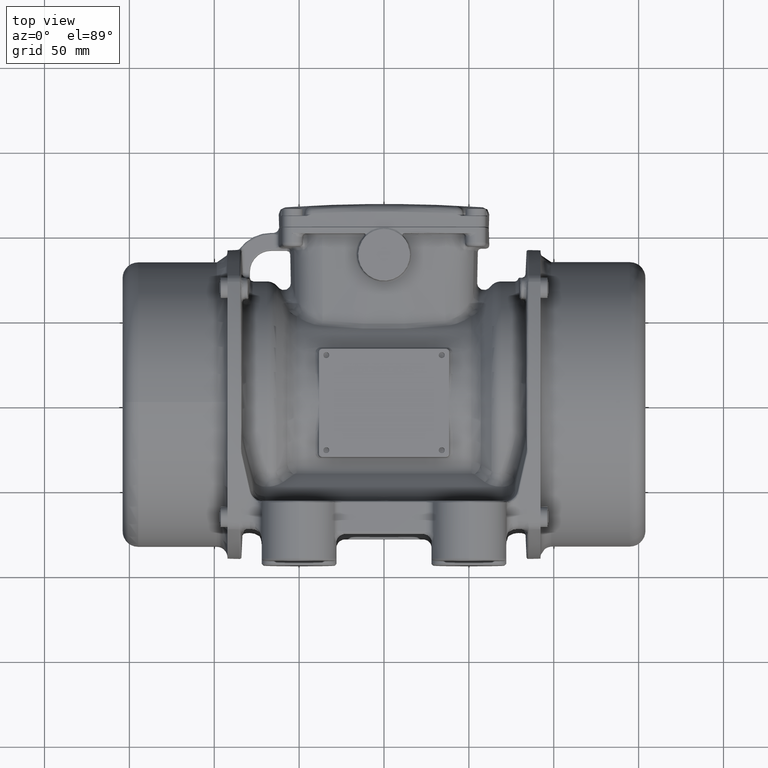
[diagram: clean part render]
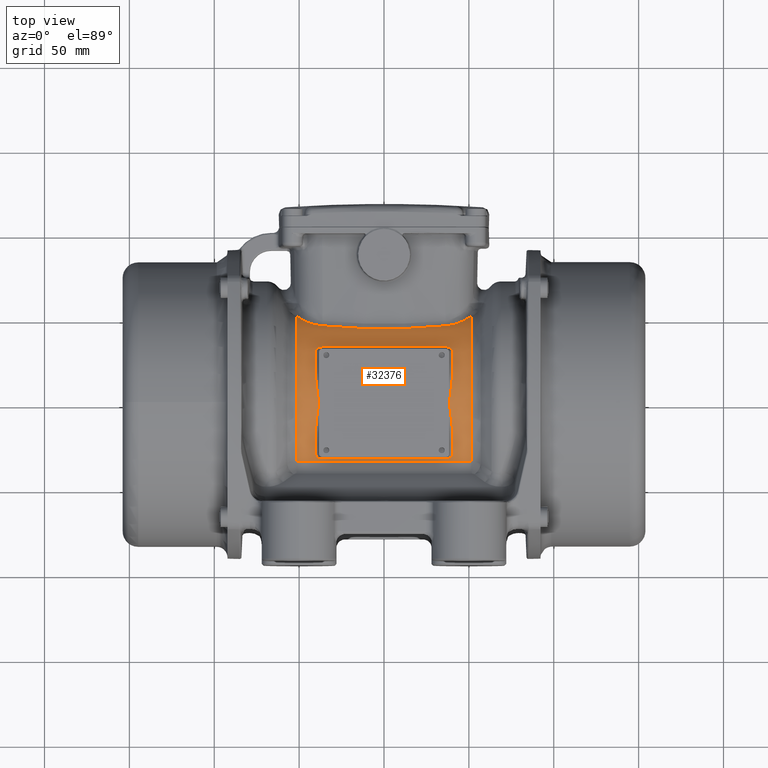
[diagram: same view with one face highlighted and labeled with its STEP entity id]
A machine part, top view. The second image highlights one B-rep face of the part: STEP entity #32376.
In plain terms, the highlighted cylindrical surface (partial cylindrical patch) has radius 61.5 mm, axis along (1, 0, 0).
Its self-contained STEP definition (entity closure, byte-faithful):
#864 = VERTEX_POINT ( 'NONE', #6590 ) ;
#918 = CARTESIAN_POINT ( 'NONE',  ( -40.37237827198737300, 13.82020204862957500, 59.94859250588175600 ) ) ;
#1373 = CARTESIAN_POINT ( 'NONE',  ( -36.63981824325555400, -33.06395834596364800, 51.85580641062659900 ) ) ;
#1546 = DIRECTION ( 'NONE',  ( 1.000000000000000000, 3.061616997868385100E-016, 0.0000000000000000000 ) ) ;
#1651 = ORIENTED_EDGE ( 'NONE', *, *, #17121, .T. ) ;
#1768 = CARTESIAN_POINT ( 'NONE',  ( -39.09687930791829300, -5.024017017944283100, 61.29765052250953500 ) ) ;
#1805 = CARTESIAN_POINT ( 'NONE',  ( -30.53394064317069500, 45.05918840119726100, 41.86555857907365000 ) ) ;
#2086 = CARTESIAN_POINT ( 'NONE',  ( 101.5000000000000000, 3.439524944109925000E-014, 0.0000000000000000000 ) ) ;
#2652 = VERTEX_POINT ( 'NONE', #43786 ) ;
#2737 = CARTESIAN_POINT ( 'NONE',  ( -24.42715251453654400, 44.58539866716068900, 42.36276519705860700 ) ) ;
#3028 = CARTESIAN_POINT ( 'NONE',  ( 40.59781497585029800, -29.15044233080824700, 54.15257807268480400 ) ) ;
#3128 = CARTESIAN_POINT ( 'NONE',  ( -40.59781497585029800, -29.15044233080824700, 54.15257807268480400 ) ) ;
#3312 = CARTESIAN_POINT ( 'NONE',  ( -36.64072877180484500, 45.66040996016249700, 41.19923497190080000 ) ) ;
#3573 = CARTESIAN_POINT ( 'NONE',  ( 38.73217251815604800, 32.49148831228546200, 52.21670608283672300 ) ) ;
#3651 = CARTESIAN_POINT ( 'NONE',  ( 40.56013201105054100, 25.26626566842902800, 56.24343822799227200 ) ) ;
#3765 = CARTESIAN_POINT ( 'NONE',  ( -42.29620551257199400, 46.80827028266508400, 39.89180593488847400 ) ) ;
#3860 = CARTESIAN_POINT ( 'NONE',  ( -37.19643222085099400, 33.03523638545208700, 51.87415115244402800 ) ) ;
#4040 = CARTESIAN_POINT ( 'NONE',  ( 39.16124436592404800, 32.19097649851242700, 52.40250222041846200 ) ) ;
#4128 = CARTESIAN_POINT ( 'NONE',  ( 39.70966625826335400, -31.65255373526390400, 52.72961700262140300 ) ) ;
#4500 = CARTESIAN_POINT ( 'NONE',  ( 36.92156262490245000, 33.06395834596361300, 51.85580641062660600 ) ) ;
#4551 = VECTOR ( 'NONE', #106080, 1000.000000000000000 ) ;
#5315 = CARTESIAN_POINT ( 'NONE',  ( 38.64116132635815900, 1.257702992987932000, 61.49999999999998600 ) ) ;
#6534 = CARTESIAN_POINT ( 'NONE',  ( -40.50023494579733800, -15.38373785286064300, 59.56686004002963800 ) ) ;
#6561 = B_SPLINE_CURVE_WITH_KNOTS ( 'NONE', 3,
 ( #122701, #4500, #113111, #90677, #123630, #79240, #3573, #4040, #90223, #91619, #58263, #79709, #80176, #100659, #91140, #35535, #133560, #111716 ),
 .UNSPECIFIED., .F., .F.,
 ( 4, 2, 2, 2, 2, 2, 2, 2, 4 ),
 ( 0.0000000000000000000, 0.0008442546387968925600, 0.001688509277593785100, 0.002532763916390677700, 0.003377018555187570300, 0.004221273193984463300, 0.005065527832781364100, 0.005909782471578264900, 0.006754037110375164800 ),
 .UNSPECIFIED. ) ;
#6590 = CARTESIAN_POINT ( 'NONE',  ( -39.47566745522460300, 7.513576333540499700, 61.03930021453440000 ) ) ;
#6965 = CARTESIAN_POINT ( 'NONE',  ( 38.50000000000000000, 1.510706235452844800E-014, 61.50000000000000000 ) ) ;
#7132 = CARTESIAN_POINT ( 'NONE',  ( 39.99960953091800100, 10.67093081852184100, 60.58847275017351600 ) ) ;
#8156 = B_SPLINE_CURVE_WITH_KNOTS ( 'NONE', 3,
 ( #3312, #47084, #79439, #90421, #3765, #25211, #79900, #36192, #14722, #135615, #91342, #70379, #102292, #37124 ),
 .UNSPECIFIED., .F., .F.,
 ( 4, 2, 2, 2, 2, 2, 4 ),
 ( 0.0000000000000000000, 0.004436189149666054800, 0.006654283724499084400, 0.008872378299332113100, 0.01330856744899815700, 0.01552666202383117300, 0.01774475659866418800 ),
 .UNSPECIFIED. ) ;
#8359 = CARTESIAN_POINT ( 'NONE',  ( 36.64072877180495200, 45.66040996016249700, 41.19923497190075100 ) ) ;
#9136 = CARTESIAN_POINT ( 'NONE',  ( 40.53016882913184600, -21.18037049350212400, 57.90596195808856100 ) ) ;
#10311 = EDGE_CURVE ( 'NONE', #92187, #89844, #128916, .T. ) ;
#10989 = CARTESIAN_POINT ( 'NONE',  ( -36.63981824325555400, -33.06395834596364800, 51.85580641062659900 ) ) ;
#11373 = CARTESIAN_POINT ( 'NONE',  ( 40.24460987866284300, -30.81210046269293200, 53.22532208104812000 ) ) ;
#11586 = EDGE_CURVE ( 'NONE', #31930, #94484, #56585, .T. ) ;
#11847 = CARTESIAN_POINT ( 'NONE',  ( 40.13282880231631100, -31.03234916996080600, 53.09710478559856700 ) ) ;
#12180 = CARTESIAN_POINT ( 'NONE',  ( 40.59781497585029800, -29.15044233080824700, 54.15257807268480400 ) ) ;
#12345 = CARTESIAN_POINT ( 'NONE',  ( -37.20237050240057600, -33.03435598851425000, 51.87471205681409700 ) ) ;
#12855 = B_SPLINE_CURVE_WITH_KNOTS ( 'NONE', 3,
 ( #18716, #72525, #61600, #63507, #20163, #105396 ),
 .UNSPECIFIED., .F., .F.,
 ( 4, 2, 4 ),
 ( 0.0000000000000000000, 0.004846722154023335200, 0.009693444308046670500 ),
 .UNSPECIFIED. ) ;
#12863 = B_SPLINE_CURVE_WITH_KNOTS ( 'NONE', 3,
 ( #132279, #67056, #99391, #120951, #34245, #45589, #2737, #1805, #98931 ),
 .UNSPECIFIED., .F., .F.,
 ( 4, 2, 1, 2, 4 ),
 ( 0.0000000000000000000, 0.01832036438590244800, 0.03664072877180489500, 0.05496109315770734300, 0.07328145754360979000 ),
 .UNSPECIFIED. ) ;
#13081 = CARTESIAN_POINT ( 'NONE',  ( 40.51511084945365600, -30.12127742201363400, 53.62126843598215900 ) ) ;
#13486 =( BOUNDED_CURVE ( )  B_SPLINE_CURVE ( 3, ( #63436, #9136, #30109, #31543 ),
 .UNSPECIFIED., .F., .T. ) 
 B_SPLINE_CURVE_WITH_KNOTS ( ( 4, 4 ),
 ( 3.420644536320120600, 3.635410353258219400 ),
 .UNSPECIFIED. ) 
 CURVE ( )  GEOMETRIC_REPRESENTATION_ITEM ( )  RATIONAL_B_SPLINE_CURVE ( ( 1.000000000000000000, 0.9961599957372612200, 0.9961599957372612200, 1.000000000000000000 ) ) 
 REPRESENTATION_ITEM ( '' )  );
#13608 = CARTESIAN_POINT ( 'NONE',  ( -38.50000000000000000, -8.467388529058099300E-015, 61.50000000000000000 ) ) ;
#13669 = CARTESIAN_POINT ( 'NONE',  ( 40.53016882913185300, 21.18037049350217400, 57.90596195808855400 ) ) ;
#13882 = CARTESIAN_POINT ( 'NONE',  ( -39.35691352721785600, 32.02220597501478500, 52.50595196452146500 ) ) ;
#14722 = CARTESIAN_POINT ( 'NONE',  ( -47.29376776391198700, 48.84008323980771100, 37.38922700958255500 ) ) ;
#15261 = CARTESIAN_POINT ( 'NONE',  ( -40.13282880231629000, 31.03234916996078500, 53.09710478559858200 ) ) ;
#16059 = CARTESIAN_POINT ( 'NONE',  ( -39.86430554135197500, -31.45419755364294500, 52.84829508349863400 ) ) ;
#16315 = CARTESIAN_POINT ( 'NONE',  ( -38.50000000000000000, -8.467388529058099300E-015, 61.50000000000000000 ) ) ;
#17121 = EDGE_CURVE ( 'NONE', #50363, #45432, #87936, .T. ) ;
#17732 = CARTESIAN_POINT ( 'NONE',  ( -39.01570558827204100, 4.397975386142642100, 61.34576374239078700 ) ) ;
#17925 = VERTEX_POINT ( 'NONE', #89531 ) ;
#18716 = CARTESIAN_POINT ( 'NONE',  ( 39.47566745522464500, -7.513576333540608900, 61.03930021453440000 ) ) ;
#19245 = CARTESIAN_POINT ( 'NONE',  ( 42.35070994937530700, 46.79742897946837100, 39.90680531180351000 ) ) ;
#19321 = CARTESIAN_POINT ( 'NONE',  ( 39.09686427396928100, -5.023905749403342100, 61.29765992817034700 ) ) ;
#19499 = ORIENTED_EDGE ( 'NONE', *, *, #73923, .T. ) ;
#19906 = ORIENTED_EDGE ( 'NONE', *, *, #10311, .T. ) ;
#20163 = CARTESIAN_POINT ( 'NONE',  ( 40.50023490116644400, -15.38372921018642400, 59.56686251639868600 ) ) ;
#20649 = EDGE_CURVE ( 'NONE', #116424, #139814, #12863, .T. ) ;
#20668 = CARTESIAN_POINT ( 'NONE',  ( 49.47431442749100900, 50.06884834030181300, 35.72671591095660700 ) ) ;
#21808 = CARTESIAN_POINT ( 'NONE',  ( 36.63981824325555400, -33.06395834596364800, 51.85580641062659900 ) ) ;
#21913 = EDGE_CURVE ( 'NONE', #139829, #116424, #86973, .T. ) ;
#21971 = CARTESIAN_POINT ( 'NONE',  ( 38.50000000000000000, 1.510706235452844800E-014, 61.50000000000000000 ) ) ;
#22146 = FACE_OUTER_BOUND ( 'NONE', #69164, .T. ) ;
#23059 = CARTESIAN_POINT ( 'NONE',  ( 38.73009096977073500, -32.49286510829819000, 52.21585258265803000 ) ) ;
#23284 = CARTESIAN_POINT ( 'NONE',  ( -38.73217251815604800, -32.49148831228547600, 52.21670608283670800 ) ) ;
#24436 = CARTESIAN_POINT ( 'NONE',  ( 39.47566745522454600, 7.513576333540149800, 61.03930021453440000 ) ) ;
#24898 = AXIS2_PLACEMENT_3D ( 'NONE', #53875, #33018, #107749 ) ;
#25211 = CARTESIAN_POINT ( 'NONE',  ( -43.62282195585361000, 47.25532367438405900, 39.36120846761478000 ) ) ;
#25768 = CARTESIAN_POINT ( 'NONE',  ( -40.51511084945359200, 30.12127742201362300, 53.62126843598213800 ) ) ;
#28109 = CARTESIAN_POINT ( 'NONE',  ( 40.50827060633314900, 16.93982637069414900, 59.12099696834219700 ) ) ;
#28892 = CARTESIAN_POINT ( 'NONE',  ( 39.36704850005553200, -6.894240838620867800, 61.11553674576585100 ) ) ;
#28908 = CARTESIAN_POINT ( 'NONE',  ( 37.19643222085095900, -33.03523638545213000, 51.87415115244398600 ) ) ;
#29360 = CARTESIAN_POINT ( 'NONE',  ( -40.59781497585029800, -29.15044233080824700, 54.15257807268480400 ) ) ;
#29559 = VERTEX_POINT ( 'NONE', #50246 ) ;
#29906 = EDGE_CURVE ( 'NONE', #116681, #120291, #13486, .T. ) ;
#30109 = CARTESIAN_POINT ( 'NONE',  ( 40.56013201105053400, -25.26626566842898600, 56.24343822799227200 ) ) ;
#30358 = CARTESIAN_POINT ( 'NONE',  ( -39.47566745522454600, -7.513576333540199500, 61.03930021453440000 ) ) ;
#31543 = CARTESIAN_POINT ( 'NONE',  ( 40.59781497585029800, -29.15044233080824700, 54.15257807268480400 ) ) ;
#31930 = VERTEX_POINT ( 'NONE', #126046 ) ;
#32149 = CARTESIAN_POINT ( 'NONE',  ( 50.46225581793016300, 50.70643267498957100, 34.82147382504322100 ) ) ;
#32268 = B_SPLINE_CURVE_WITH_KNOTS ( 'NONE', 3,
 ( #16315, #137733, #61549, #17732, #103434, #104387, #93904, #93441 ),
 .UNSPECIFIED., .F., .F.,
 ( 4, 2, 2, 4 ),
 ( -4.981115576185990000E-005, 0.003749451573491743700, 0.005649082938118545200, 0.007548714302745346800 ),
 .UNSPECIFIED. ) ;
#32376 = ADVANCED_FACE ( 'NONE', ( #93715, #22146 ), #105634, .T. ) ;
#33018 = DIRECTION ( 'NONE',  ( -1.000000000000000000, -3.061616997868385100E-016, -0.0000000000000000000 ) ) ;
#33055 = DIRECTION ( 'NONE',  ( -3.384826294588891900E-016, 1.000000000000000000, 0.0000000000000000000 ) ) ;
#34028 = CARTESIAN_POINT ( 'NONE',  ( 40.59781497585029800, 29.15044233080824700, 54.15257807268480400 ) ) ;
#34042 =( BOUNDED_CURVE ( )  B_SPLINE_CURVE ( 3, ( #46492, #3651, #13669, #100273 ),
 .UNSPECIFIED., .F., .F. ) 
 B_SPLINE_CURVE_WITH_KNOTS ( ( 4, 4 ),
 ( 2.647774953921319800, 2.862540770859417700 ),
 .UNSPECIFIED. ) 
 CURVE ( )  GEOMETRIC_REPRESENTATION_ITEM ( )  RATIONAL_B_SPLINE_CURVE ( ( 1.000000000000000000, 0.9961599957372612200, 0.9961599957372612200, 1.000000000000000000 ) ) 
 REPRESENTATION_ITEM ( '' )  );
#34206 = CARTESIAN_POINT ( 'NONE',  ( -38.78265301791531500, -2.516441608369090600, 61.46134661405522300 ) ) ;
#34245 = CARTESIAN_POINT ( 'NONE',  ( 5.724587470723463400E-014, 43.61740027586208900, 43.35515467347053700 ) ) ;
#34707 = EDGE_CURVE ( 'NONE', #139814, #31930, #8156, .T. ) ;
#34966 = EDGE_CURVE ( 'NONE', #43877, #102826, #54088, .T. ) ;
#35271 = B_SPLINE_CURVE_WITH_KNOTS ( 'NONE', 3,
 ( #24436, #59093, #124905, #70061, #136240, #49564, #5315, #38681 ),
 .UNSPECIFIED., .F., .F.,
 ( 4, 2, 2, 4 ),
 ( 0.0000000000000000000, 0.001898399835515815900, 0.003796799671031631700, 0.007593599342063260000 ),
 .UNSPECIFIED. ) ;
#35535 = CARTESIAN_POINT ( 'NONE',  ( 40.57852504874156800, 29.64358102313208200, 53.88490535027602100 ) ) ;
#35974 = EDGE_CURVE ( 'NONE', #2652, #139829, #55752, .T. ) ;
#36192 = CARTESIAN_POINT ( 'NONE',  ( -46.13289338346918100, 48.26855378466547100, 38.11903781614861900 ) ) ;
#36915 = CARTESIAN_POINT ( 'NONE',  ( 38.00138859626879700, -32.83870200115879400, 51.99890067617311500 ) ) ;
#37124 = CARTESIAN_POINT ( 'NONE',  ( -51.36683324359469800, 51.36350239038790000, 33.82366955539580300 ) ) ;
#37604 = B_SPLINE_CURVE_WITH_KNOTS ( 'NONE', 3,
 ( #91902, #135244, #25768, #133382, #15261, #47633, #90034, #13882, #123901, #58542, #134311, #79064, #134774, #3860, #111990, #37693 ),
 .UNSPECIFIED., .F., .F.,
 ( 4, 2, 2, 2, 2, 2, 2, 4 ),
 ( 0.0000000000000000000, 0.001658463665774781700, 0.002487695498662165200, 0.003316927331549540800, 0.004146159164436915400, 0.004975390997324291400, 0.005804622830211666500, 0.006633854663099041600 ),
 .UNSPECIFIED. ) ;
#37693 = CARTESIAN_POINT ( 'NONE',  ( -36.63981824325555400, 33.06395834596360600, 51.85580641062659900 ) ) ;
#38459 = CARTESIAN_POINT ( 'NONE',  ( 36.92106458352602500, -33.06395834596361300, 51.85580641062659200 ) ) ;
#38511 = ORIENTED_EDGE ( 'NONE', *, *, #74537, .T. ) ;
#38681 = CARTESIAN_POINT ( 'NONE',  ( 38.50000000000000000, 1.510706235452844800E-014, 61.50000000000000000 ) ) ;
#38787 = ORIENTED_EDGE ( 'NONE', *, *, #35974, .T. ) ;
#40319 = CARTESIAN_POINT ( 'NONE',  ( -40.56013201105054100, -25.26626566842901800, 56.24343822799227900 ) ) ;
#40342 = ORIENTED_EDGE ( 'NONE', *, *, #29906, .T. ) ;
#41265 = CARTESIAN_POINT ( 'NONE',  ( 39.27274268073112000, -6.271991136875468200, 61.18255363114116800 ) ) ;
#41534 = EDGE_CURVE ( 'NONE', #89844, #71389, #35271, .T. ) ;
#42041 = LINE ( 'NONE', #127098, #4551 ) ;
#42123 = CARTESIAN_POINT ( 'NONE',  ( 38.11729689752115700, 45.83667163015868300, 41.00351525518133400 ) ) ;
#43080 = AXIS2_PLACEMENT_3D ( 'NONE', #2086, #78246, #120759 ) ;
#43786 = CARTESIAN_POINT ( 'NONE',  ( 51.36683324359469800, -34.61027141481080300, 50.83678896815889900 ) ) ;
#43877 = VERTEX_POINT ( 'NONE', #21808 ) ;
#44003 = CARTESIAN_POINT ( 'NONE',  ( -40.53016882913185300, 21.18037049350216700, 57.90596195808854700 ) ) ;
#44269 = CARTESIAN_POINT ( 'NONE',  ( 38.49575868235481100, -32.62438758180001500, 52.13362979463369800 ) ) ;
#44732 = CARTESIAN_POINT ( 'NONE',  ( -39.47566745522460300, 7.513576333540499700, 61.03930021453440000 ) ) ;
#45326 = CARTESIAN_POINT ( 'NONE',  ( -36.64072877180484500, 45.66040996016249700, 41.19923497190080000 ) ) ;
#45365 = VERTEX_POINT ( 'NONE', #3128 ) ;
#45432 = VERTEX_POINT ( 'NONE', #13608 ) ;
#45483 = ORIENTED_EDGE ( 'NONE', *, *, #34707, .T. ) ;
#45589 = CARTESIAN_POINT ( 'NONE',  ( -12.21357625726824200, 43.94665107686246600, 43.02503351049568900 ) ) ;
#46020 = CARTESIAN_POINT ( 'NONE',  ( -39.27275113117633500, -6.272046519955015500, 61.18254766702533900 ) ) ;
#46077 =( BOUNDED_CURVE ( )  B_SPLINE_CURVE ( 3, ( #66820, #44003, #88668, #67285 ),
 .UNSPECIFIED., .F., .F. ) 
 B_SPLINE_CURVE_WITH_KNOTS ( ( 4, 4 ),
 ( 0.2790518827303405400, 0.4938176996684389700 ),
 .UNSPECIFIED. ) 
 CURVE ( )  GEOMETRIC_REPRESENTATION_ITEM ( )  RATIONAL_B_SPLINE_CURVE ( ( 1.000000000000000000, 0.9961599957372612200, 0.9961599957372612200, 1.000000000000000000 ) ) 
 REPRESENTATION_ITEM ( '' )  );
#46492 = CARTESIAN_POINT ( 'NONE',  ( 40.59781497585029800, 29.15044233080824700, 54.15257807268480400 ) ) ;
#46572 = CARTESIAN_POINT ( 'NONE',  ( -39.16124436592407000, -32.19097649851243400, 52.40250222041844800 ) ) ;
#47084 = CARTESIAN_POINT ( 'NONE',  ( -38.12758436090937400, 45.80679290589563400, 41.03700124795156500 ) ) ;
#47633 = CARTESIAN_POINT ( 'NONE',  ( -39.86624663525889600, 31.45161561437881300, 52.84983544784754600 ) ) ;
#48434 = CARTESIAN_POINT ( 'NONE',  ( -40.60021224044035600, -29.39754070068807200, 54.01956452028200300 ) ) ;
#49266 = EDGE_CURVE ( 'NONE', #128281, #50307, #6561, .T. ) ;
#49564 = CARTESIAN_POINT ( 'NONE',  ( 38.78265301791672900, 2.516441608381366100, 61.46134661405464800 ) ) ;
#49600 = CARTESIAN_POINT ( 'NONE',  ( -51.36683324359460600, -34.61027141481080300, 50.83678896815899900 ) ) ;
#50246 = CARTESIAN_POINT ( 'NONE',  ( -40.50827060633314900, 16.93982637069410300, 59.12099696834219700 ) ) ;
#50307 = VERTEX_POINT ( 'NONE', #34028 ) ;
#50363 = VERTEX_POINT ( 'NONE', #68653 ) ;
#50696 = EDGE_CURVE ( 'NONE', #94484, #2652, #42041, .T. ) ;
#52048 = CARTESIAN_POINT ( 'NONE',  ( 47.30611466767798100, 48.86623307356579500, 37.34375540534782100 ) ) ;
#52572 = ORIENTED_EDGE ( 'NONE', *, *, #96550, .T. ) ;
#53076 = ORIENTED_EDGE ( 'NONE', *, *, #34966, .T. ) ;
#53746 = CARTESIAN_POINT ( 'NONE',  ( -40.50023490116644400, 15.38372921018640600, 59.56686251639870000 ) ) ;
#53875 = CARTESIAN_POINT ( 'NONE',  ( 51.36683324359469800, 1.904639389126120200E-014, 0.0000000000000000000 ) ) ;
#54088 = LINE ( 'NONE', #108087, #64562 ) ;
#55123 = EDGE_CURVE ( 'NONE', #45365, #90308, #102461, .T. ) ;
#55752 = CIRCLE ( 'NONE', #24898, 61.50000000000000000 ) ;
#56512 = B_SPLINE_CURVE_WITH_KNOTS ( 'NONE', 3,
 ( #117065, #6534, #137451, #105561, #138892, #30358 ),
 .UNSPECIFIED., .F., .F.,
 ( 4, 2, 4 ),
 ( 0.0000000000000000000, 0.004843233503173409800, 0.009686467006346819600 ),
 .UNSPECIFIED. ) ;
#56585 = CIRCLE ( 'NONE', #124396, 61.50000000000000000 ) ;
#56832 = CARTESIAN_POINT ( 'NONE',  ( 40.60260638783499600, -29.64431776523035100, 53.88672392719242100 ) ) ;
#57006 = CARTESIAN_POINT ( 'NONE',  ( -38.50083908597583400, -32.62202177129625400, 52.13511452158464700 ) ) ;
#57978 = DIRECTION ( 'NONE',  ( 1.000000000000000000, 3.061616997868385100E-016, 0.0000000000000000000 ) ) ;
#58263 = CARTESIAN_POINT ( 'NONE',  ( 39.86430554135197500, 31.45419755364295300, 52.84829508349866200 ) ) ;
#58542 = CARTESIAN_POINT ( 'NONE',  ( -38.73009096977070000, 32.49286510829816200, 52.21585258265806600 ) ) ;
#59093 = CARTESIAN_POINT ( 'NONE',  ( 39.36705333453466700, 6.894268404384988000, 61.11553335258347600 ) ) ;
#60459 = ORIENTED_EDGE ( 'NONE', *, *, #49266, .T. ) ;
#61549 = CARTESIAN_POINT ( 'NONE',  ( -38.78263069786101600, 2.516250542652656500, 61.46135492928849000 ) ) ;
#61600 = CARTESIAN_POINT ( 'NONE',  ( 39.99961880233117700, -10.67099870760311700, 60.58846024354424700 ) ) ;
#62863 = CARTESIAN_POINT ( 'NONE',  ( 40.37237634145730400, 13.82017530006124600, 59.94859922807018600 ) ) ;
#63436 = CARTESIAN_POINT ( 'NONE',  ( 40.50827060633314900, -16.93982637069410300, 59.12099696834219700 ) ) ;
#63507 = CARTESIAN_POINT ( 'NONE',  ( 40.37237827198737300, -13.82020204862961800, 59.94859250588174900 ) ) ;
#64506 = B_SPLINE_CURVE_WITH_KNOTS ( 'NONE', 3,
 ( #44732, #109048, #121005, #918, #53746, #140918 ),
 .UNSPECIFIED., .F., .F.,
 ( 4, 2, 4 ),
 ( 0.0000000000000000000, 0.004846722154023389000, 0.009693444308046778000 ),
 .UNSPECIFIED. ) ;
#64562 = VECTOR ( 'NONE', #76612, 1000.000000000000000 ) ;
#66082 = CARTESIAN_POINT ( 'NONE',  ( -38.64116133069665400, -1.257702992484222700, 61.50000000000002100 ) ) ;
#66820 = CARTESIAN_POINT ( 'NONE',  ( -40.50827060633314900, 16.93982637069410300, 59.12099696834219700 ) ) ;
#67056 = CARTESIAN_POINT ( 'NONE',  ( 30.53394064317080100, 45.05918840119725400, 41.86555857907365700 ) ) ;
#67285 = CARTESIAN_POINT ( 'NONE',  ( -40.59781497585029800, 29.15044233080824700, 54.15257807268480400 ) ) ;
#68110 = VECTOR ( 'NONE', #57978, 1000.000000000000000 ) ;
#68653 = CARTESIAN_POINT ( 'NONE',  ( -39.47566745522454600, -7.513576333540199500, 61.03930021453440000 ) ) ;
#69164 = EDGE_LOOP ( 'NONE', ( #120555, #89355, #38787, #133497, #97174, #45483 ) ) ;
#70061 = CARTESIAN_POINT ( 'NONE',  ( 39.09687930791908200, 5.024017017950384900, 61.29765052250902400 ) ) ;
#70379 = CARTESIAN_POINT ( 'NONE',  ( -50.43987118715526200, 50.71039359694688600, 34.79965701320773500 ) ) ;
#71389 = VERTEX_POINT ( 'NONE', #21971 ) ;
#71482 = LINE ( 'NONE', #89933, #68110 ) ;
#71648 = ORIENTED_EDGE ( 'NONE', *, *, #119227, .T. ) ;
#71865 = CARTESIAN_POINT ( 'NONE',  ( 39.47566745522454600, 7.513576333540149800, 61.03930021453440000 ) ) ;
#72525 = CARTESIAN_POINT ( 'NONE',  ( 39.75301038098924500, -9.094960705389606700, 60.84464116456503300 ) ) ;
#73923 = EDGE_CURVE ( 'NONE', #102826, #45365, #132868, .T. ) ;
#74002 = CARTESIAN_POINT ( 'NONE',  ( 43.66237573442159500, 47.24715720380724100, 39.37803988183439700 ) ) ;
#74537 = EDGE_CURVE ( 'NONE', #126241, #128281, #71482, .T. ) ;
#74947 = CARTESIAN_POINT ( 'NONE',  ( 46.13795008093536900, 48.30046611931852100, 38.07050294723457300 ) ) ;
#75971 = CARTESIAN_POINT ( 'NONE',  ( 39.35691352721789100, -32.02220597501481300, 52.50595196452146500 ) ) ;
#76612 = DIRECTION ( 'NONE',  ( -1.000000000000000000, -3.061616997868385100E-016, -0.0000000000000000000 ) ) ;
#77305 = CARTESIAN_POINT ( 'NONE',  ( 39.16170146141672600, -32.19073712645256100, 52.40265248186937400 ) ) ;
#78246 = DIRECTION ( 'NONE',  ( 1.000000000000000000, 3.061616997868385100E-016, 0.0000000000000000000 ) ) ;
#79064 = CARTESIAN_POINT ( 'NONE',  ( -38.00138859626878900, 32.83870200115875800, 51.99890067617315000 ) ) ;
#79240 = CARTESIAN_POINT ( 'NONE',  ( 38.50083908597583400, 32.62202177129625400, 52.13511452158464700 ) ) ;
#79336 = CARTESIAN_POINT ( 'NONE',  ( 39.86624663525893200, -31.45161561437882700, 52.84983544784753200 ) ) ;
#79439 = CARTESIAN_POINT ( 'NONE',  ( -39.55527558466045000, 46.07026641682247700, 40.74404544284224300 ) ) ;
#79709 = CARTESIAN_POINT ( 'NONE',  ( 40.13058257813937500, 31.03634547150979400, 53.09476524808484800 ) ) ;
#79900 = CARTESIAN_POINT ( 'NONE',  ( -44.26749771561838300, 47.49818087115566800, 39.06838742582052500 ) ) ;
#80130 = EDGE_CURVE ( 'NONE', #17925, #126241, #37604, .T. ) ;
#80176 = CARTESIAN_POINT ( 'NONE',  ( 40.24414321624779200, 30.81281215600983400, 53.22489970943635000 ) ) ;
#80323 = CARTESIAN_POINT ( 'NONE',  ( -40.24414321624779200, -30.81281215600984100, 53.22489970943635000 ) ) ;
#80768 = CARTESIAN_POINT ( 'NONE',  ( -39.36039713988715500, -32.01887539766327300, 52.50797888656252600 ) ) ;
#81683 = CARTESIAN_POINT ( 'NONE',  ( 36.63981824325555400, -33.06395834596364800, 51.85580641062659900 ) ) ;
#81705 = CARTESIAN_POINT ( 'NONE',  ( -40.59781497585029800, -29.15044233080824700, 54.15257807268480400 ) ) ;
#84448 = CARTESIAN_POINT ( 'NONE',  ( 37.38408965269469100, 45.73359484528839400, 41.11812541100689300 ) ) ;
#85386 = CARTESIAN_POINT ( 'NONE',  ( 45.53314004632930800, 48.02736497072883300, 38.41445608058559500 ) ) ;
#86973 = B_SPLINE_CURVE_WITH_KNOTS ( 'NONE', 3,
 ( #96828, #32149, #20668, #129721, #52048, #97289, #74947, #85386, #128799, #74002, #19245, #118825, #106874, #42123, #84448, #139720 ),
 .UNSPECIFIED., .F., .F.,
 ( 4, 2, 2, 2, 2, 2, 2, 4 ),
 ( 0.0000000000000000000, 0.004439218146582280200, 0.006658827219873431900, 0.007768631756519008700, 0.008878436293164584600, 0.01331765443974693800, 0.01553726351303811600, 0.01775687258632929100 ),
 .UNSPECIFIED. ) ;
#87936 = B_SPLINE_CURVE_WITH_KNOTS ( 'NONE', 3,
 ( #132235, #110369, #46020, #1768, #99346, #34206, #66082, #132708 ),
 .UNSPECIFIED., .F., .F.,
 ( 4, 2, 2, 4 ),
 ( 0.0000000000000000000, 0.001898399835520480100, 0.003796799671040960200, 0.007593599342081918700 ),
 .UNSPECIFIED. ) ;
#88057 = EDGE_CURVE ( 'NONE', #120291, #43877, #124040, .T. ) ;
#88487 = CARTESIAN_POINT ( 'NONE',  ( -38.00031994756061200, -32.83932737111247500, 51.99851005979476100 ) ) ;
#88668 = CARTESIAN_POINT ( 'NONE',  ( -40.56013201105054100, 25.26626566842902500, 56.24343822799225700 ) ) ;
#89355 = ORIENTED_EDGE ( 'NONE', *, *, #50696, .T. ) ;
#89531 = CARTESIAN_POINT ( 'NONE',  ( -40.59781497585029800, 29.15044233080824700, 54.15257807268480400 ) ) ;
#89844 = VERTEX_POINT ( 'NONE', #129921 ) ;
#89933 = CARTESIAN_POINT ( 'NONE',  ( 101.5000000000000000, 33.06395834596360600, 51.85580641062659900 ) ) ;
#90034 = CARTESIAN_POINT ( 'NONE',  ( -39.70966625826331200, 31.65255373526387900, 52.72961700262140300 ) ) ;
#90223 = CARTESIAN_POINT ( 'NONE',  ( 39.36039713988715500, 32.01887539766326500, 52.50797888656254000 ) ) ;
#90308 = VERTEX_POINT ( 'NONE', #128848 ) ;
#90421 = CARTESIAN_POINT ( 'NONE',  ( -41.62057896121351800, 46.60609284836722600, 40.12725110321814300 ) ) ;
#90677 = CARTESIAN_POINT ( 'NONE',  ( 37.74013442353939500, 32.92203989022345900, 51.94606545273468600 ) ) ;
#91140 = CARTESIAN_POINT ( 'NONE',  ( 40.49007214652933600, 30.12204477388522900, 53.61890841040366200 ) ) ;
#91286 = CARTESIAN_POINT ( 'NONE',  ( -39.71088304999059900, -31.65095440599704400, 52.73057285552926000 ) ) ;
#91342 = CARTESIAN_POINT ( 'NONE',  ( -49.44460976294208600, 50.07187825612172800, 35.71228296956519400 ) ) ;
#91619 = CARTESIAN_POINT ( 'NONE',  ( 39.71088304999060600, 31.65095440599703000, 52.73057285552927500 ) ) ;
#91762 = CARTESIAN_POINT ( 'NONE',  ( -40.13058257813939600, -31.03634547150980100, 53.09476524808484000 ) ) ;
#91902 = CARTESIAN_POINT ( 'NONE',  ( -40.59781497585029800, 29.15044233080824700, 54.15257807268480400 ) ) ;
#92187 = VERTEX_POINT ( 'NONE', #134343 ) ;
#93441 = CARTESIAN_POINT ( 'NONE',  ( -39.47566745522460300, 7.513576333540499700, 61.03930021453440000 ) ) ;
#93715 = FACE_BOUND ( 'NONE', #112968, .T. ) ;
#93904 = CARTESIAN_POINT ( 'NONE',  ( -39.36704850005833800, 6.894240838636689800, 61.11553674576387600 ) ) ;
#94093 = CARTESIAN_POINT ( 'NONE',  ( 37.73603868239830900, -32.92324854459146600, 51.94529917230590100 ) ) ;
#94484 = VERTEX_POINT ( 'NONE', #49600 ) ;
#95476 = CARTESIAN_POINT ( 'NONE',  ( 39.47566745522464500, -7.513576333540608900, 61.03930021453440000 ) ) ;
#95753 = EDGE_CURVE ( 'NONE', #864, #29559, #64506, .T. ) ;
#95981 = EDGE_CURVE ( 'NONE', #90308, #50363, #56512, .T. ) ;
#96550 = EDGE_CURVE ( 'NONE', #29559, #17925, #46077, .T. ) ;
#96828 = CARTESIAN_POINT ( 'NONE',  ( 51.36683324359469800, 51.36350239038800700, 33.82366955539575300 ) ) ;
#97174 = ORIENTED_EDGE ( 'NONE', *, *, #20649, .T. ) ;
#97289 = CARTESIAN_POINT ( 'NONE',  ( 46.43431431550414600, 48.43995700399119600, 37.89293161125318200 ) ) ;
#98205 = CARTESIAN_POINT ( 'NONE',  ( -51.36683324359460600, -1.240672006579084000E-014, 0.0000000000000000000 ) ) ;
#98931 = CARTESIAN_POINT ( 'NONE',  ( -36.64072877180484500, 45.66040996016249700, 41.19923497190080000 ) ) ;
#99189 = CARTESIAN_POINT ( 'NONE',  ( 40.50827060633314900, -16.93982637069410300, 59.12099696834219700 ) ) ;
#99346 = CARTESIAN_POINT ( 'NONE',  ( -39.01572542078079700, -4.398130069737165500, 61.34575252929102600 ) ) ;
#99391 = CARTESIAN_POINT ( 'NONE',  ( 24.42715251453665500, 44.58539866716069600, 42.36276519705861400 ) ) ;
#100273 = CARTESIAN_POINT ( 'NONE',  ( 40.50827060633314900, 16.93982637069414900, 59.12099696834219700 ) ) ;
#100613 = CARTESIAN_POINT ( 'NONE',  ( -36.63981824325555400, 33.06395834596360600, 51.85580641062659900 ) ) ;
#100659 = CARTESIAN_POINT ( 'NONE',  ( 40.42342822650461200, 30.35589730636236200, 53.48680996999809200 ) ) ;
#102292 = CARTESIAN_POINT ( 'NONE',  ( -50.91463372248148300, 51.03503232004221200, 34.32247330629406400 ) ) ;
#102461 =( BOUNDED_CURVE ( )  B_SPLINE_CURVE ( 3, ( #29360, #40319, #117037, #138855 ),
 .UNSPECIFIED., .F., .T. ) 
 B_SPLINE_CURVE_WITH_KNOTS ( ( 4, 4 ),
 ( 5.789367607511125300, 6.004133424449223700 ),
 .UNSPECIFIED. ) 
 CURVE ( )  GEOMETRIC_REPRESENTATION_ITEM ( )  RATIONAL_B_SPLINE_CURVE ( ( 1.000000000000000000, 0.9961599957372612200, 0.9961599957372612200, 1.000000000000000000 ) ) 
 REPRESENTATION_ITEM ( '' )  );
#102826 = VERTEX_POINT ( 'NONE', #10989 ) ;
#103434 = CARTESIAN_POINT ( 'NONE',  ( -39.09686427397801400, 5.023905749467545900, 61.29765992816493300 ) ) ;
#104387 = CARTESIAN_POINT ( 'NONE',  ( -39.27274268073600900, 6.271991136907368900, 61.18255363113772900 ) ) ;
#104595 = ORIENTED_EDGE ( 'NONE', *, *, #129432, .T. ) ;
#105396 = CARTESIAN_POINT ( 'NONE',  ( 40.50827060633314900, -16.93982637069410300, 59.12099696834219700 ) ) ;
#105561 = CARTESIAN_POINT ( 'NONE',  ( -39.99960953091801500, -10.67093081852185100, 60.58847275017351600 ) ) ;
#105634 = CYLINDRICAL_SURFACE ( 'NONE', #43080, 61.50000000000000000 ) ;
#106080 = DIRECTION ( 'NONE',  ( 1.000000000000000000, 3.061616997868385100E-016, 0.0000000000000000000 ) ) ;
#106160 = CARTESIAN_POINT ( 'NONE',  ( 40.50023494579733800, 15.38373785286068300, 59.56686004002966000 ) ) ;
#106874 = CARTESIAN_POINT ( 'NONE',  ( 39.56441876813902800, 46.09814993318062900, 40.70932696754987000 ) ) ;
#107749 = DIRECTION ( 'NONE',  ( -3.384826294588891900E-016, 1.000000000000000000, 1.776356839400250500E-015 ) ) ;
#108087 = CARTESIAN_POINT ( 'NONE',  ( 101.5000000000000000, -33.06395834596360600, 51.85580641062659900 ) ) ;
#108852 = CARTESIAN_POINT ( 'NONE',  ( 39.47566745522464500, -7.513576333540608900, 61.03930021453440000 ) ) ;
#109048 = CARTESIAN_POINT ( 'NONE',  ( -39.75301038098920300, 9.094960705389516100, 60.84464116456503300 ) ) ;
#110369 = CARTESIAN_POINT ( 'NONE',  ( -39.36705333453438300, -6.894268404383519000, 61.11553335258367500 ) ) ;
#111378 = VERTEX_POINT ( 'NONE', #108852 ) ;
#111716 = CARTESIAN_POINT ( 'NONE',  ( 40.59781497585029800, 29.15044233080824700, 54.15257807268480400 ) ) ;
#111990 = CARTESIAN_POINT ( 'NONE',  ( -36.92106458352603200, 33.06395834596360600, 51.85580641062662000 ) ) ;
#112393 = ORIENTED_EDGE ( 'NONE', *, *, #80130, .T. ) ;
#112968 = EDGE_LOOP ( 'NONE', ( #19906, #114039, #71648, #104595, #40342, #138617, #53076, #19499, #125529, #122470, #1651, #140816, #116182, #52572, #112393, #38511, #60459, #136002 ) ) ;
#113111 = CARTESIAN_POINT ( 'NONE',  ( 37.20237050240057600, 33.03435598851423500, 51.87471205681411800 ) ) ;
#113726 = CARTESIAN_POINT ( 'NONE',  ( -40.42342822650462600, -30.35589730636237200, 53.48680996999807700 ) ) ;
#114039 = ORIENTED_EDGE ( 'NONE', *, *, #41534, .T. ) ;
#115360 = EDGE_CURVE ( 'NONE', #45432, #864, #32268, .T. ) ;
#115594 = CARTESIAN_POINT ( 'NONE',  ( 38.78263069784581100, -2.516250542523506400, 61.46135492929446500 ) ) ;
#116100 = EDGE_CURVE ( 'NONE', #50307, #92187, #34042, .T. ) ;
#116182 = ORIENTED_EDGE ( 'NONE', *, *, #95753, .T. ) ;
#116424 = VERTEX_POINT ( 'NONE', #8359 ) ;
#116553 = CARTESIAN_POINT ( 'NONE',  ( 38.64125290512173900, -1.258518888751507700, 61.50000000000576300 ) ) ;
#116681 = VERTEX_POINT ( 'NONE', #99189 ) ;
#117037 = CARTESIAN_POINT ( 'NONE',  ( -40.53016882913184600, -21.18037049350216000, 57.90596195808856800 ) ) ;
#117065 = CARTESIAN_POINT ( 'NONE',  ( -40.50827060633314900, -16.93982637069410300, 59.12099696834219700 ) ) ;
#118825 = CARTESIAN_POINT ( 'NONE',  ( 40.27683233564980700, 46.25655058512236900, 40.52970694794944300 ) ) ;
#119227 = EDGE_CURVE ( 'NONE', #71389, #111378, #140402, .T. ) ;
#120291 = VERTEX_POINT ( 'NONE', #3028 ) ;
#120555 = ORIENTED_EDGE ( 'NONE', *, *, #11586, .T. ) ;
#120759 = DIRECTION ( 'NONE',  ( -2.256550863059261500E-016, 1.000000000000000000, 0.0000000000000000000 ) ) ;
#120951 = CARTESIAN_POINT ( 'NONE',  ( 12.21357625726835400, 43.94665107686243700, 43.02503351049571000 ) ) ;
#121005 = CARTESIAN_POINT ( 'NONE',  ( -39.99961880233117000, 10.67099870760304200, 60.58846024354425500 ) ) ;
#121904 = CARTESIAN_POINT ( 'NONE',  ( -36.92156262490243500, -33.06395834596360600, 51.85580641062659900 ) ) ;
#122470 = ORIENTED_EDGE ( 'NONE', *, *, #95981, .T. ) ;
#122701 = CARTESIAN_POINT ( 'NONE',  ( 36.63981824325555400, 33.06395834596360600, 51.85580641062659900 ) ) ;
#123303 = CARTESIAN_POINT ( 'NONE',  ( -40.57852504874158200, -29.64358102313208200, 53.88490535027603600 ) ) ;
#123630 = CARTESIAN_POINT ( 'NONE',  ( 38.00031994756061200, 32.83932737111247500, 51.99851005979476800 ) ) ;
#123901 = CARTESIAN_POINT ( 'NONE',  ( -39.16170146141669100, 32.19073712645252500, 52.40265248186940300 ) ) ;
#124040 = B_SPLINE_CURVE_WITH_KNOTS ( 'NONE', 3,
 ( #12180, #56832, #13081, #11373, #11847, #79336, #4128, #75971, #77305, #23059, #44269, #36915, #94093, #28908, #38459, #81683 ),
 .UNSPECIFIED., .F., .F.,
 ( 4, 2, 2, 2, 2, 2, 2, 4 ),
 ( 0.0000000000000000000, 0.001658463665774774500, 0.002487695498662161700, 0.003316927331549540800, 0.004146159164436920600, 0.004975390997324300100, 0.005804622830211679500, 0.006633854663099059800 ),
 .UNSPECIFIED. ) ;
#124396 = AXIS2_PLACEMENT_3D ( 'NONE', #98205, #1546, #33055 ) ;
#124841 = CARTESIAN_POINT ( 'NONE',  ( 51.36683324359469800, 51.36350239038800700, 33.82366955539575300 ) ) ;
#124905 = CARTESIAN_POINT ( 'NONE',  ( 39.27275113117679000, 6.272046519958028200, 61.18254766702500500 ) ) ;
#125529 = ORIENTED_EDGE ( 'NONE', *, *, #55123, .T. ) ;
#126046 = CARTESIAN_POINT ( 'NONE',  ( -51.36683324359469800, 51.36350239038790000, 33.82366955539580300 ) ) ;
#126241 = VERTEX_POINT ( 'NONE', #100613 ) ;
#127098 = CARTESIAN_POINT ( 'NONE',  ( 101.5000000000000000, -34.61027141481075400, 50.83678896815899900 ) ) ;
#127183 = CARTESIAN_POINT ( 'NONE',  ( 39.75300975952833200, 9.094957161875587600, 60.84464160075059200 ) ) ;
#128281 = VERTEX_POINT ( 'NONE', #134826 ) ;
#128799 = CARTESIAN_POINT ( 'NONE',  ( 45.22413432978137800, 47.89354624890927400, 38.58108792857115100 ) ) ;
#128848 = CARTESIAN_POINT ( 'NONE',  ( -40.50827060633314900, -16.93982637069410300, 59.12099696834219700 ) ) ;
#128916 = B_SPLINE_CURVE_WITH_KNOTS ( 'NONE', 3,
 ( #28109, #106160, #62863, #7132, #127183, #71865 ),
 .UNSPECIFIED., .F., .F.,
 ( 4, 2, 4 ),
 ( 0.0000000000000000000, 0.004843233503173456600, 0.009686467006346913300 ),
 .UNSPECIFIED. ) ;
#129432 = EDGE_CURVE ( 'NONE', #111378, #116681, #12855, .T. ) ;
#129721 = CARTESIAN_POINT ( 'NONE',  ( 47.86431316204082300, 49.16078869574668900, 36.95573441008486500 ) ) ;
#129921 = CARTESIAN_POINT ( 'NONE',  ( 39.47566745522454600, 7.513576333540149800, 61.03930021453440000 ) ) ;
#132235 = CARTESIAN_POINT ( 'NONE',  ( -39.47566745522454600, -7.513576333540199500, 61.03930021453440000 ) ) ;
#132279 = CARTESIAN_POINT ( 'NONE',  ( 36.64072877180495200, 45.66040996016249700, 41.19923497190075100 ) ) ;
#132708 = CARTESIAN_POINT ( 'NONE',  ( -38.50000000000000000, -8.467388529058099300E-015, 61.50000000000000000 ) ) ;
#132868 = B_SPLINE_CURVE_WITH_KNOTS ( 'NONE', 3,
 ( #1373, #121904, #12345, #133700, #88487, #57006, #23284, #46572, #80768, #91286, #16059, #91762, #80323, #113726, #134174, #123303, #48434, #81705 ),
 .UNSPECIFIED., .F., .F.,
 ( 4, 2, 2, 2, 2, 2, 2, 2, 4 ),
 ( 0.0000000000000000000, 0.0008442546387968937600, 0.001688509277593787500, 0.002532763916390681200, 0.003377018555187575000, 0.004221273193984468500, 0.005065527832781362300, 0.005909782471578256200, 0.006754037110375150100 ),
 .UNSPECIFIED. ) ;
#133382 = CARTESIAN_POINT ( 'NONE',  ( -40.24460987866280700, 30.81210046269292500, 53.22532208104812000 ) ) ;
#133497 = ORIENTED_EDGE ( 'NONE', *, *, #21913, .T. ) ;
#133560 = CARTESIAN_POINT ( 'NONE',  ( 40.60021224044034900, 29.39754070068806900, 54.01956452028198900 ) ) ;
#133700 = CARTESIAN_POINT ( 'NONE',  ( -37.74013442353938100, -32.92203989022345900, 51.94606545273467200 ) ) ;
#134174 = CARTESIAN_POINT ( 'NONE',  ( -40.49007214652933600, -30.12204477388523200, 53.61890841040364800 ) ) ;
#134311 = CARTESIAN_POINT ( 'NONE',  ( -38.49575868235479700, 32.62438758179997200, 52.13362979463372000 ) ) ;
#134343 = CARTESIAN_POINT ( 'NONE',  ( 40.50827060633314900, 16.93982637069414900, 59.12099696834219700 ) ) ;
#134774 = CARTESIAN_POINT ( 'NONE',  ( -37.73603868239830200, 32.92324854459143100, 51.94529917230593700 ) ) ;
#134826 = CARTESIAN_POINT ( 'NONE',  ( 36.63981824325555400, 33.06395834596360600, 51.85580641062659900 ) ) ;
#135244 = CARTESIAN_POINT ( 'NONE',  ( -40.60260638783500300, 29.64431776523034000, 53.88672392719242100 ) ) ;
#135615 = CARTESIAN_POINT ( 'NONE',  ( -48.92296310136833200, 49.75735098375098200, 36.14858959753723200 ) ) ;
#136002 = ORIENTED_EDGE ( 'NONE', *, *, #116100, .T. ) ;
#136240 = CARTESIAN_POINT ( 'NONE',  ( 39.01572542078172000, 4.398130069744833100, 61.34575252929045800 ) ) ;
#137451 = CARTESIAN_POINT ( 'NONE',  ( -40.37237634145731100, -13.82017530006122600, 59.94859922807018600 ) ) ;
#137733 = CARTESIAN_POINT ( 'NONE',  ( -38.64125290565210200, 1.258518888855805900, 61.50000000000173400 ) ) ;
#137895 = CARTESIAN_POINT ( 'NONE',  ( 39.01570558826163900, -4.397975386062146400, 61.34576374239672700 ) ) ;
#138617 = ORIENTED_EDGE ( 'NONE', *, *, #88057, .T. ) ;
#138855 = CARTESIAN_POINT ( 'NONE',  ( -40.50827060633314900, -16.93982637069410300, 59.12099696834219700 ) ) ;
#138892 = CARTESIAN_POINT ( 'NONE',  ( -39.75300975952833200, -9.094957161875623100, 60.84464160075059200 ) ) ;
#139720 = CARTESIAN_POINT ( 'NONE',  ( 36.64072877180495200, 45.66040996016249700, 41.19923497190075100 ) ) ;
#139814 = VERTEX_POINT ( 'NONE', #45326 ) ;
#139829 = VERTEX_POINT ( 'NONE', #124841 ) ;
#140402 = B_SPLINE_CURVE_WITH_KNOTS ( 'NONE', 3,
 ( #6965, #116553, #115594, #137895, #19321, #41265, #28892, #95476 ),
 .UNSPECIFIED., .F., .F.,
 ( 4, 2, 2, 4 ),
 ( -4.981115597306180600E-005, 0.003749451573378291900, 0.005649082938053969300, 0.007548714302729647500 ),
 .UNSPECIFIED. ) ;
#140816 = ORIENTED_EDGE ( 'NONE', *, *, #115360, .T. ) ;
#140918 = CARTESIAN_POINT ( 'NONE',  ( -40.50827060633314900, 16.93982637069410300, 59.12099696834219700 ) ) ;